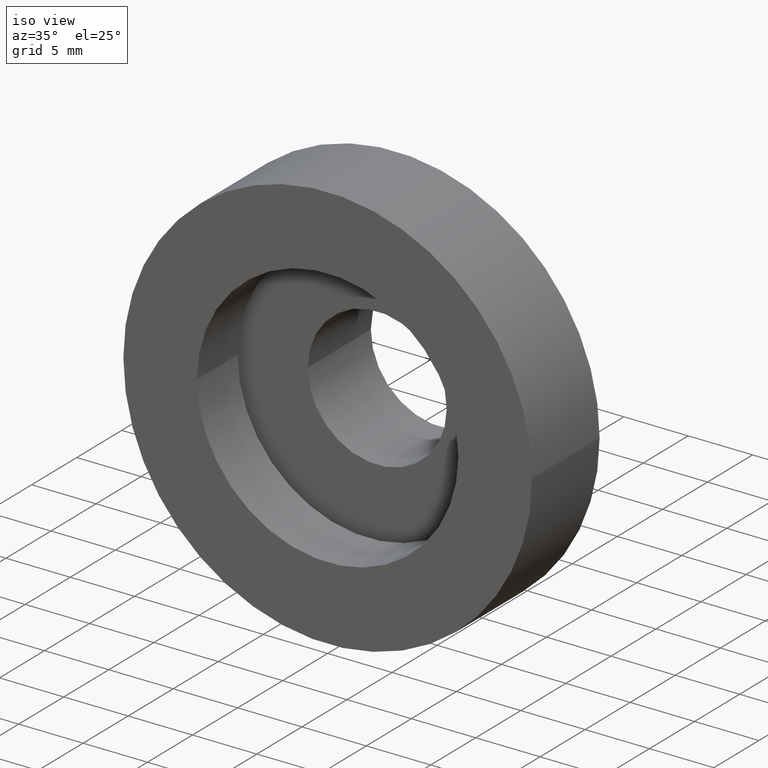
[diagram: clean part render]
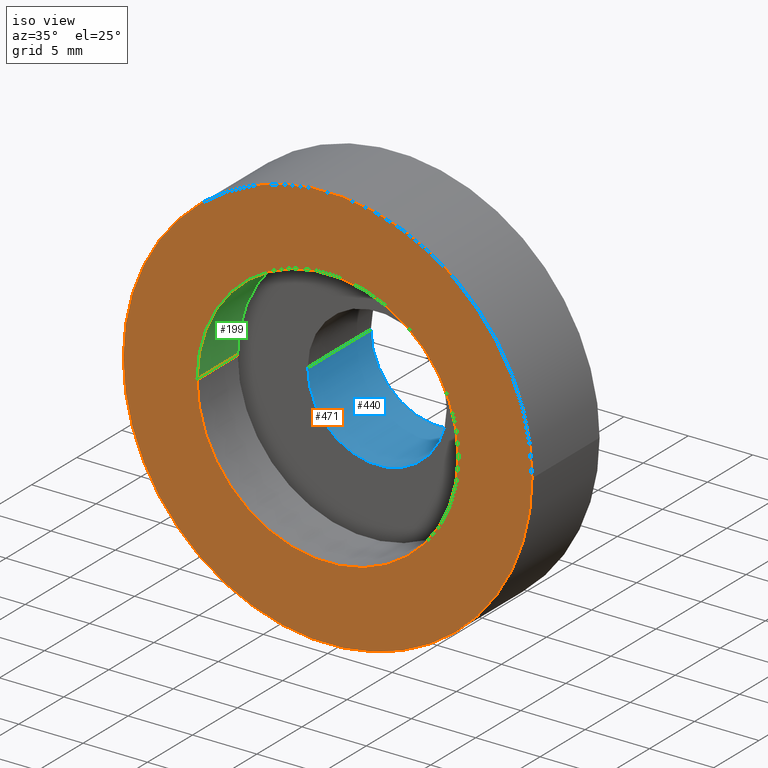
[diagram: same view with three faces highlighted in distinct colors, each labeled with its STEP entity id]
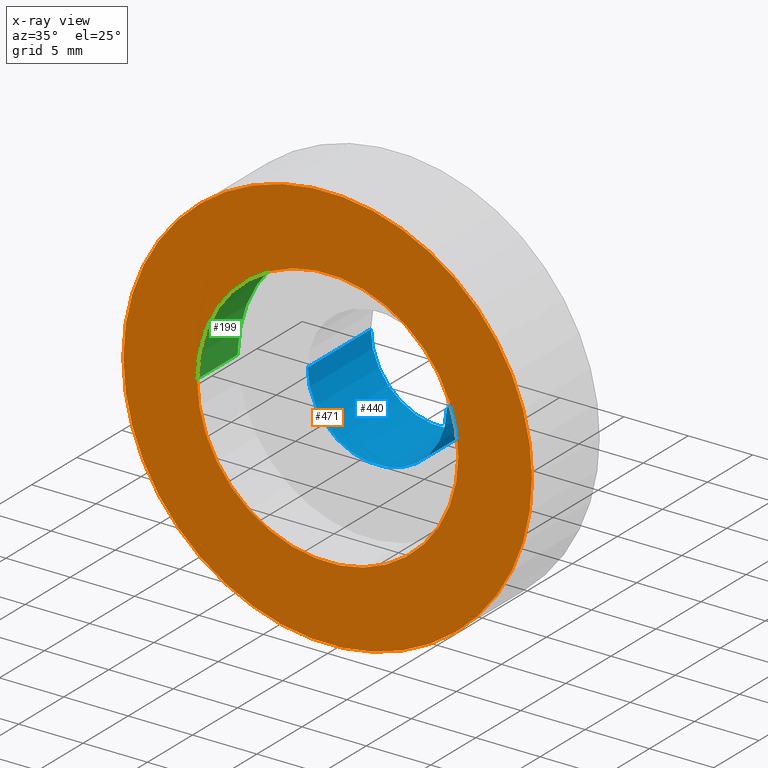
[diagram: x-ray of the same camera — body ghosted, the three highlighted faces saturated]
A machine part, iso view with three faces highlighted in distinct colors.
The next image is the same camera in x-ray (body ghosted, the three faces saturated) — at least one of them is partly hidden behind the body in this view.
Their STEP definitions:

[orange] entity #471 — the highlighted planar face has unit normal (-0, 1, 0).
#15 = DIRECTION ( 'NONE',  ( -1.224646799147351000E-016, 1.000000000000000000, 0.0000000000000000000 ) ) ;
#20 = ORIENTED_EDGE ( 'NONE', *, *, #224, .T. ) ;
#27 = ORIENTED_EDGE ( 'NONE', *, *, #304, .F. ) ;
#38 = DIRECTION ( 'NONE',  ( -1.000000000000000000, -1.224646799147350700E-016, 0.0000000000000000000 ) ) ;
#46 = CIRCLE ( 'NONE', #161, 10.15000000000000000 ) ;
#49 = CIRCLE ( 'NONE', #578, 15.87499999999999600 ) ;
#53 = CARTESIAN_POINT ( 'NONE',  ( 15.87500000000000000, 3.061616997868304100E-017, 0.0000000000000000000 ) ) ;
#66 = FACE_BOUND ( 'NONE', #80, .T. ) ;
#75 = EDGE_CURVE ( 'NONE', #163, #397, #49, .T. ) ;
#76 = CARTESIAN_POINT ( 'NONE',  ( 15.87500000000000000, -1.525320158307194900E-015, 1.944126793646423200E-015 ) ) ;
#80 = EDGE_LOOP ( 'NONE', ( #20, #127 ) ) ;
#100 = CIRCLE ( 'NONE', #560, 15.87499999999999600 ) ;
#101 = DIRECTION ( 'NONE',  ( -1.000000000000000000, -1.224646799147351000E-016, 0.0000000000000000000 ) ) ;
#105 = CARTESIAN_POINT ( 'NONE',  ( 2.067940818438636100E-015, 0.0000000000000000000, 0.0000000000000000000 ) ) ;
#127 = ORIENTED_EDGE ( 'NONE', *, *, #550, .T. ) ;
#161 = AXIS2_PLACEMENT_3D ( 'NONE', #105, #492, #101 ) ;
#163 = VERTEX_POINT ( 'NONE', #233 ) ;
#224 = EDGE_CURVE ( 'NONE', #559, #300, #589, .T. ) ;
#229 = CARTESIAN_POINT ( 'NONE',  ( 2.067940818438636500E-015, -3.469446951953614200E-015, 0.0000000000000000000 ) ) ;
#233 = CARTESIAN_POINT ( 'NONE',  ( -15.87499999999999300, -5.413573745600033100E-015, 0.0000000000000000000 ) ) ;
#246 = CARTESIAN_POINT ( 'NONE',  ( 2.067940818438636100E-015, 0.0000000000000000000, 0.0000000000000000000 ) ) ;
#298 = DIRECTION ( 'NONE',  ( -1.000000000000000000, -1.224646799147351000E-016, 0.0000000000000000000 ) ) ;
#300 = VERTEX_POINT ( 'NONE', #307 ) ;
#304 = EDGE_CURVE ( 'NONE', #397, #163, #100, .T. ) ;
#307 = CARTESIAN_POINT ( 'NONE',  ( 10.15000000000000200, 1.243016501134561300E-015, 1.243016501134563700E-015 ) ) ;
#316 = DIRECTION ( 'NONE',  ( -1.224646799147351000E-016, 1.000000000000000000, -0.0000000000000000000 ) ) ;
#323 = AXIS2_PLACEMENT_3D ( 'NONE', #246, #443, #491 ) ;
#359 = CARTESIAN_POINT ( 'NONE',  ( 2.067940818438636500E-015, -3.469446951953614200E-015, 0.0000000000000000000 ) ) ;
#378 = ORIENTED_EDGE ( 'NONE', *, *, #75, .F. ) ;
#397 = VERTEX_POINT ( 'NONE', #76 ) ;
#399 = CARTESIAN_POINT ( 'NONE',  ( -10.14999999999999900, -1.243016501134561300E-015, 0.0000000000000000000 ) ) ;
#420 = EDGE_LOOP ( 'NONE', ( #378, #27 ) ) ;
#443 = DIRECTION ( 'NONE',  ( -1.224646799147351000E-016, 1.000000000000000000, -0.0000000000000000000 ) ) ;
#471 = ADVANCED_FACE ( 'NONE', ( #617, #66 ), #607, .F. ) ;
#491 = DIRECTION ( 'NONE',  ( -1.000000000000000000, -1.224646799147351000E-016, 0.0000000000000000000 ) ) ;
#492 = DIRECTION ( 'NONE',  ( -1.224646799147351000E-016, 1.000000000000000000, -0.0000000000000000000 ) ) ;
#550 = EDGE_CURVE ( 'NONE', #300, #559, #46, .T. ) ;
#559 = VERTEX_POINT ( 'NONE', #399 ) ;
#560 = AXIS2_PLACEMENT_3D ( 'NONE', #359, #316, #603 ) ;
#575 = DIRECTION ( 'NONE',  ( -1.224646799147351000E-016, 1.000000000000000000, -0.0000000000000000000 ) ) ;
#578 = AXIS2_PLACEMENT_3D ( 'NONE', #229, #575, #38 ) ;
#589 = CIRCLE ( 'NONE', #323, 10.15000000000000000 ) ;
#603 = DIRECTION ( 'NONE',  ( -1.000000000000000000, -1.224646799147350700E-016, 0.0000000000000000000 ) ) ;
#607 = PLANE ( 'NONE',  #616 ) ;
#616 = AXIS2_PLACEMENT_3D ( 'NONE', #53, #15, #298 ) ;
#617 = FACE_OUTER_BOUND ( 'NONE', #420, .T. ) ;

[blue] entity #440 — the highlighted cylindrical surface (partial cylindrical patch) has radius 5.4 mm, axis along (-0, 1, -0).
#10 = DIRECTION ( 'NONE',  ( -1.224646799147351000E-016, 1.000000000000000000, -0.0000000000000000000 ) ) ;
#14 = ORIENTED_EDGE ( 'NONE', *, *, #287, .T. ) ;
#18 = VECTOR ( 'NONE', #553, 1000.000000000000000 ) ;
#74 = CARTESIAN_POINT ( 'NONE',  ( 0.0000000000000000000, 16.88601823708207700, 0.0000000000000000000 ) ) ;
#116 = CARTESIAN_POINT ( 'NONE',  ( 5.400000000000000400, 16.88601823708207700, 6.613092715395707500E-016 ) ) ;
#138 = CIRCLE ( 'NONE', #380, 5.400000000000000400 ) ;
#168 = CARTESIAN_POINT ( 'NONE',  ( -5.400000000000000400, 16.88601823708207700, 0.0000000000000000000 ) ) ;
#169 = LINE ( 'NONE', #168, #179 ) ;
#179 = VECTOR ( 'NONE', #366, 1000.000000000000000 ) ;
#204 = CARTESIAN_POINT ( 'NONE',  ( 5.371323195044475300E-016, 12.49999999999999600, 0.0000000000000000000 ) ) ;
#205 = EDGE_CURVE ( 'NONE', #494, #222, #283, .T. ) ;
#206 = CARTESIAN_POINT ( 'NONE',  ( 5.400000000000001200, 12.49999999999999600, 6.613092715395707500E-016 ) ) ;
#222 = VERTEX_POINT ( 'NONE', #396 ) ;
#265 = DIRECTION ( 'NONE',  ( -1.224646799147351000E-016, 1.000000000000000000, -0.0000000000000000000 ) ) ;
#281 = AXIS2_PLACEMENT_3D ( 'NONE', #74, #265, #557 ) ;
#283 = CIRCLE ( 'NONE', #294, 5.400000000000000400 ) ;
#287 = EDGE_CURVE ( 'NONE', #583, #494, #452, .T. ) ;
#294 = AXIS2_PLACEMENT_3D ( 'NONE', #204, #10, #539 ) ;
#334 = CYLINDRICAL_SURFACE ( 'NONE', #281, 5.400000000000000400 ) ;
#366 = DIRECTION ( 'NONE',  ( -1.224646799147351000E-016, 1.000000000000000000, -0.0000000000000000000 ) ) ;
#367 = EDGE_CURVE ( 'NONE', #583, #501, #138, .T. ) ;
#380 = AXIS2_PLACEMENT_3D ( 'NONE', #400, #455, #497 ) ;
#396 = CARTESIAN_POINT ( 'NONE',  ( -5.399999999999999500, 12.49999999999999600, 0.0000000000000000000 ) ) ;
#400 = CARTESIAN_POINT ( 'NONE',  ( 1.394385078907593000E-015, 5.499999999999998200, 0.0000000000000000000 ) ) ;
#419 = EDGE_CURVE ( 'NONE', #501, #222, #169, .T. ) ;
#425 = ORIENTED_EDGE ( 'NONE', *, *, #419, .F. ) ;
#440 = ADVANCED_FACE ( 'NONE', ( #571 ), #334, .F. ) ;
#442 = CARTESIAN_POINT ( 'NONE',  ( 5.400000000000002100, 5.499999999999999100, 6.613092715395707500E-016 ) ) ;
#448 = ORIENTED_EDGE ( 'NONE', *, *, #205, .T. ) ;
#450 = CARTESIAN_POINT ( 'NONE',  ( -5.399999999999998600, 5.499999999999997300, 0.0000000000000000000 ) ) ;
#452 = LINE ( 'NONE', #116, #18 ) ;
#455 = DIRECTION ( 'NONE',  ( -1.224646799147351000E-016, 1.000000000000000000, -0.0000000000000000000 ) ) ;
#494 = VERTEX_POINT ( 'NONE', #206 ) ;
#497 = DIRECTION ( 'NONE',  ( -1.000000000000000000, -1.606225440719265600E-016, 0.0000000000000000000 ) ) ;
#501 = VERTEX_POINT ( 'NONE', #450 ) ;
#539 = DIRECTION ( 'NONE',  ( -1.000000000000000000, 0.0000000000000000000, 0.0000000000000000000 ) ) ;
#548 = EDGE_LOOP ( 'NONE', ( #580, #14, #448, #425 ) ) ;
#553 = DIRECTION ( 'NONE',  ( -1.224646799147351000E-016, 1.000000000000000000, -0.0000000000000000000 ) ) ;
#557 = DIRECTION ( 'NONE',  ( -1.000000000000000000, 0.0000000000000000000, 0.0000000000000000000 ) ) ;
#571 = FACE_OUTER_BOUND ( 'NONE', #548, .T. ) ;
#580 = ORIENTED_EDGE ( 'NONE', *, *, #367, .F. ) ;
#583 = VERTEX_POINT ( 'NONE', #442 ) ;

[green] entity #199 — the highlighted cylindrical surface (partial cylindrical patch) has radius 10.15 mm, axis along (-0, 1, -0).
#22 = CARTESIAN_POINT ( 'NONE',  ( -10.14999999999999900, 4.499999999999994700, 0.0000000000000000000 ) ) ;
#50 = DIRECTION ( 'NONE',  ( -1.000000000000000000, 0.0000000000000000000, 0.0000000000000000000 ) ) ;
#60 = DIRECTION ( 'NONE',  ( -1.224646799147351000E-016, 1.000000000000000000, -0.0000000000000000000 ) ) ;
#79 = CIRCLE ( 'NONE', #390, 10.15000000000000000 ) ;
#92 = ORIENTED_EDGE ( 'NONE', *, *, #253, .F. ) ;
#95 = CARTESIAN_POINT ( 'NONE',  ( 10.15000000000000200, 4.499999999999996400, 1.243016501134563700E-015 ) ) ;
#96 = DIRECTION ( 'NONE',  ( -1.224646799147351000E-016, 1.000000000000000000, -0.0000000000000000000 ) ) ;
#111 = CARTESIAN_POINT ( 'NONE',  ( 1.516849758822328500E-015, 4.499999999999995600, 0.0000000000000000000 ) ) ;
#120 = LINE ( 'NONE', #470, #620 ) ;
#143 = CARTESIAN_POINT ( 'NONE',  ( 10.15000000000000000, 16.88601823708207700, 1.243016501134563700E-015 ) ) ;
#167 = EDGE_CURVE ( 'NONE', #559, #277, #120, .T. ) ;
#188 = VERTEX_POINT ( 'NONE', #95 ) ;
#192 = DIRECTION ( 'NONE',  ( -1.224646799147351000E-016, 1.000000000000000000, -0.0000000000000000000 ) ) ;
#197 = VECTOR ( 'NONE', #531, 1000.000000000000000 ) ;
#199 = ADVANCED_FACE ( 'NONE', ( #362 ), #426, .F. ) ;
#224 = EDGE_CURVE ( 'NONE', #559, #300, #589, .T. ) ;
#228 = EDGE_CURVE ( 'NONE', #277, #188, #79, .T. ) ;
#230 = ORIENTED_EDGE ( 'NONE', *, *, #224, .F. ) ;
#246 = CARTESIAN_POINT ( 'NONE',  ( 2.067940818438636100E-015, 0.0000000000000000000, 0.0000000000000000000 ) ) ;
#249 = ORIENTED_EDGE ( 'NONE', *, *, #228, .T. ) ;
#253 = EDGE_CURVE ( 'NONE', #300, #188, #538, .T. ) ;
#277 = VERTEX_POINT ( 'NONE', #22 ) ;
#300 = VERTEX_POINT ( 'NONE', #307 ) ;
#307 = CARTESIAN_POINT ( 'NONE',  ( 10.15000000000000200, 1.243016501134561300E-015, 1.243016501134563700E-015 ) ) ;
#323 = AXIS2_PLACEMENT_3D ( 'NONE', #246, #443, #491 ) ;
#333 = AXIS2_PLACEMENT_3D ( 'NONE', #340, #192, #50 ) ;
#340 = CARTESIAN_POINT ( 'NONE',  ( 0.0000000000000000000, 16.88601823708207700, 0.0000000000000000000 ) ) ;
#362 = FACE_OUTER_BOUND ( 'NONE', #517, .T. ) ;
#390 = AXIS2_PLACEMENT_3D ( 'NONE', #111, #60, #543 ) ;
#399 = CARTESIAN_POINT ( 'NONE',  ( -10.14999999999999900, -1.243016501134561300E-015, 0.0000000000000000000 ) ) ;
#405 = ORIENTED_EDGE ( 'NONE', *, *, #167, .T. ) ;
#426 = CYLINDRICAL_SURFACE ( 'NONE', #333, 10.15000000000000000 ) ;
#443 = DIRECTION ( 'NONE',  ( -1.224646799147351000E-016, 1.000000000000000000, -0.0000000000000000000 ) ) ;
#470 = CARTESIAN_POINT ( 'NONE',  ( -10.15000000000000000, 16.88601823708207700, 0.0000000000000000000 ) ) ;
#491 = DIRECTION ( 'NONE',  ( -1.000000000000000000, -1.224646799147351000E-016, 0.0000000000000000000 ) ) ;
#517 = EDGE_LOOP ( 'NONE', ( #92, #230, #405, #249 ) ) ;
#531 = DIRECTION ( 'NONE',  ( -1.224646799147351000E-016, 1.000000000000000000, -0.0000000000000000000 ) ) ;
#538 = LINE ( 'NONE', #143, #197 ) ;
#543 = DIRECTION ( 'NONE',  ( -1.000000000000000000, -8.545435842250281000E-017, 0.0000000000000000000 ) ) ;
#559 = VERTEX_POINT ( 'NONE', #399 ) ;
#589 = CIRCLE ( 'NONE', #323, 10.15000000000000000 ) ;
#620 = VECTOR ( 'NONE', #96, 1000.000000000000000 ) ;